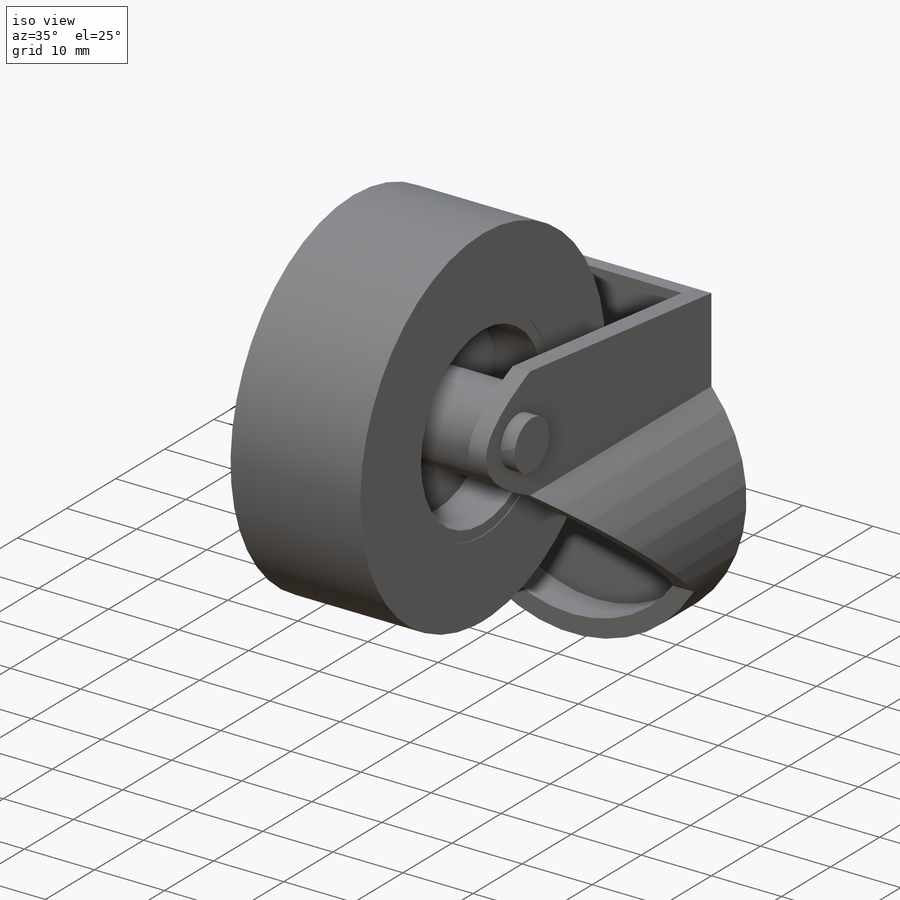
[diagram: iso view]
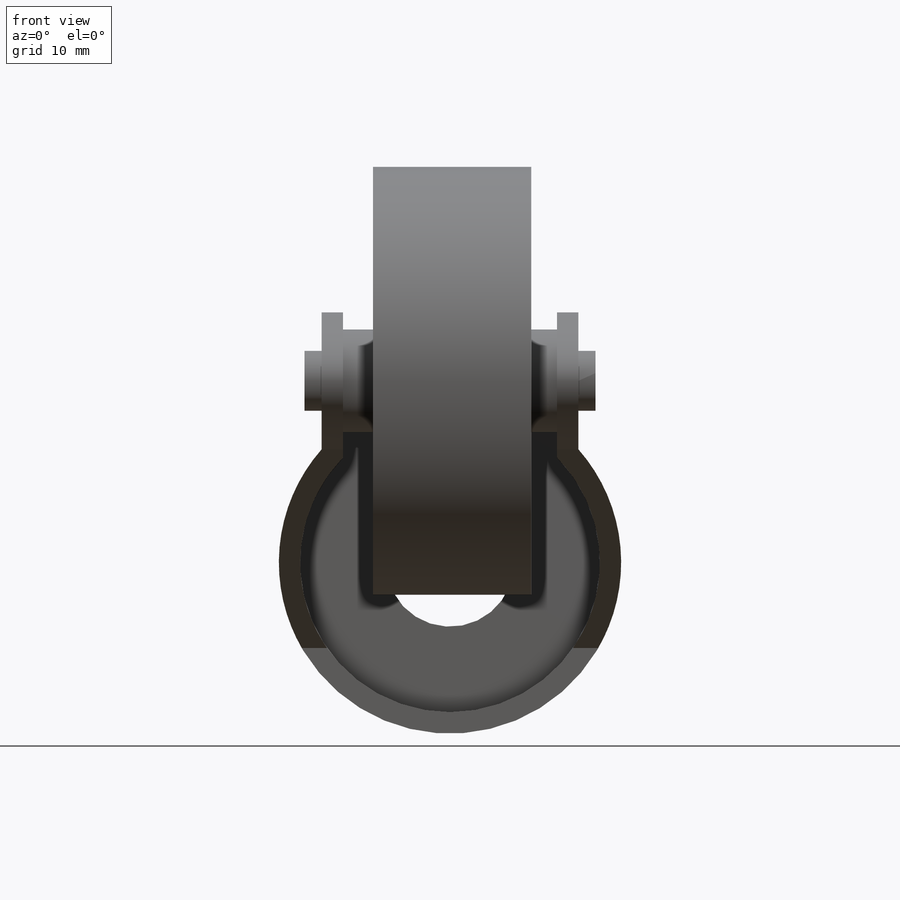
[diagram: front view]
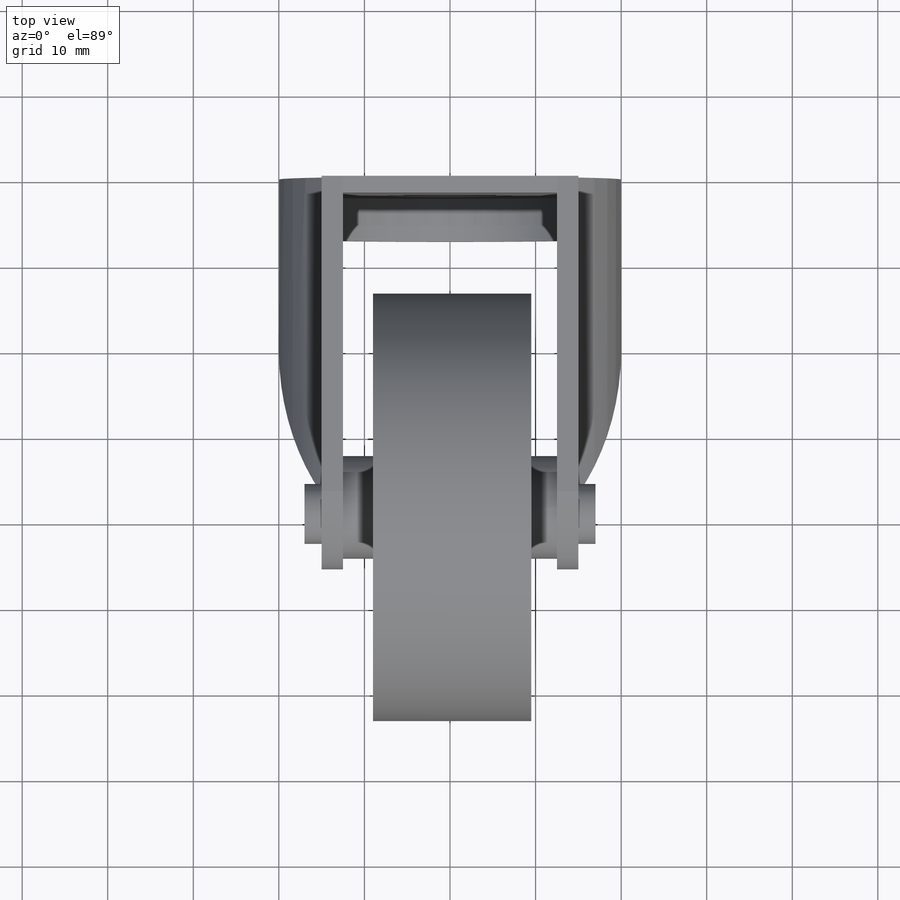
[diagram: top view]
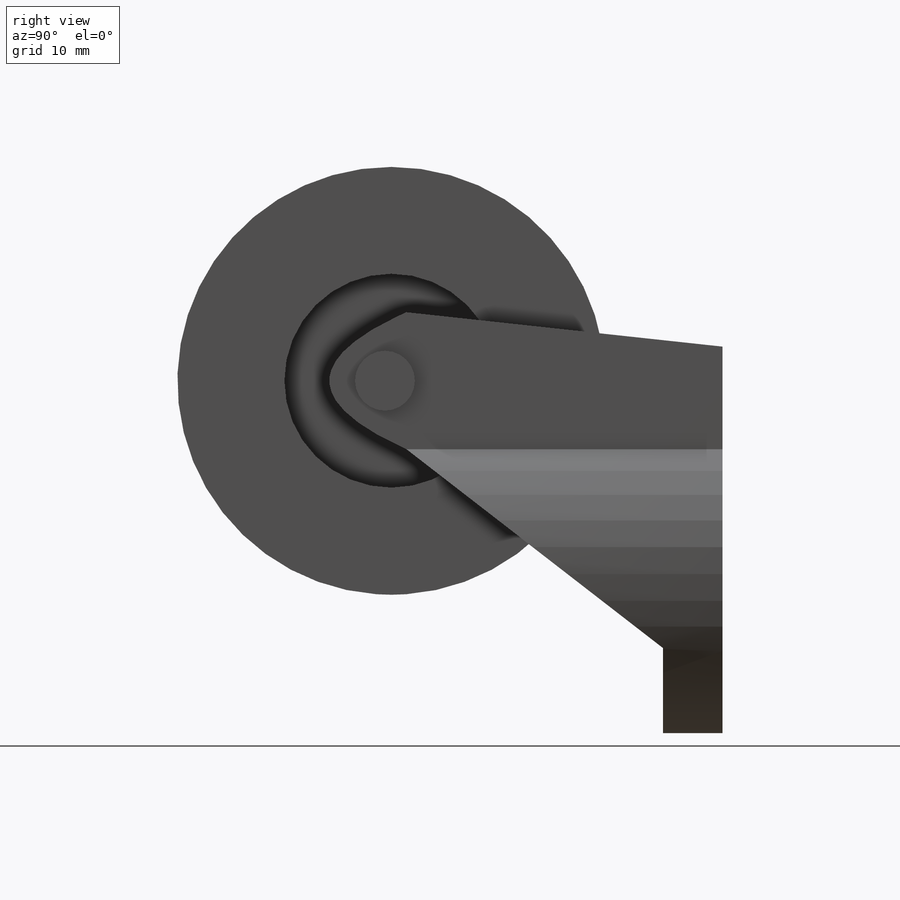
[diagram: right view]
SOLIDWORKS PART (.sldprt)
format: sldprt  version: not decoded by parser v0  size: 449,536 bytes
history: native  units: mm
features: sketch x16, extrude x12, cut_extrude x4, material x1, plane x1 (+13 scaffold rows collapsed)
feature tree (47):
  scaffold x13  (default folders/planes/origin — collapsed)
  material  "Material <not specified>"
  sketch  "Sketch1"  dims[D1=20.0mm D2=12.0mm]
  extrude  "Boss-Extrude1"  Depth=1.95mm
  sketch  "Sketch4"  dims[D1=2.5mm D2=2.5mm]
  extrude  "Boss-Extrude2"  Depth=5mm
  sketch  "Sketch7"
  extrude  "Boss-Extrude3"  Depth=40mm
  sketch  "Sketch10"
  plane  "Plane2"  Offset=10mm
  sketch  "Sketch19"
  extrude  "Boss-Extrude5"  Depth=2.5mm
  sketch  "Sketch20"
  extrude  "Boss-Extrude6"  Depth=2.5mm
  sketch  "Sketch22"
  extrude  "Boss-Extrude7"  Depth=2.5mm
  cut_extrude  "Cut-Extrude8"  Depth=42.5mm
  sketch  "Sketch24"
  cut_extrude  "Cut-Extrude9"  Depth=42.5mm
  sketch  "Sketch25"  dims[D2=5.0mm D1=6.5mm]
  extrude  "Boss-Extrude8"  Depth=2mm
  sketch  "Sketch26"  dims[D2=~2.839079mm D1=6.5mm]
  extrude  "Boss-Extrude9"  Depth=2mm
  sketch  "Sketch27"  dims[D2=~6.061754mm D1=7.25mm]
  extrude  "Boss-Extrude10"  Depth=12.25mm
  sketch  "Sketch33"  dims[D1=~20.566942mm]
  extrude  "Boss-Extrude11"  Depth=18.5mm
  sketch  "Sketch40"  dims[D1=~10.72925mm]
  extrude  "Boss-Extrude13"  Depth=5mm
  sketch  "Sketch34"  dims[D2=~6.002169mm D1=7.25mm]
  extrude  "Boss-Extrude12"  [1 undecoded]
  sketch  "Sketch47"  dims[D1=12.5mm]
  cut_extrude  "Cut-Extrude10"  Depth=0.1mm
  sketch  "Sketch48"  dims[D1=12.5mm]
  cut_extrude  "Cut-Extrude13"  Depth=0.1mm
decode coverage: 25 of 32 modeling features carry decoded parameters
note: ~ marks probable driven/reference dimensions
note: 1 parameter value undecoded
note: suppression state not decoded; provenance and decode notes live in map.json
